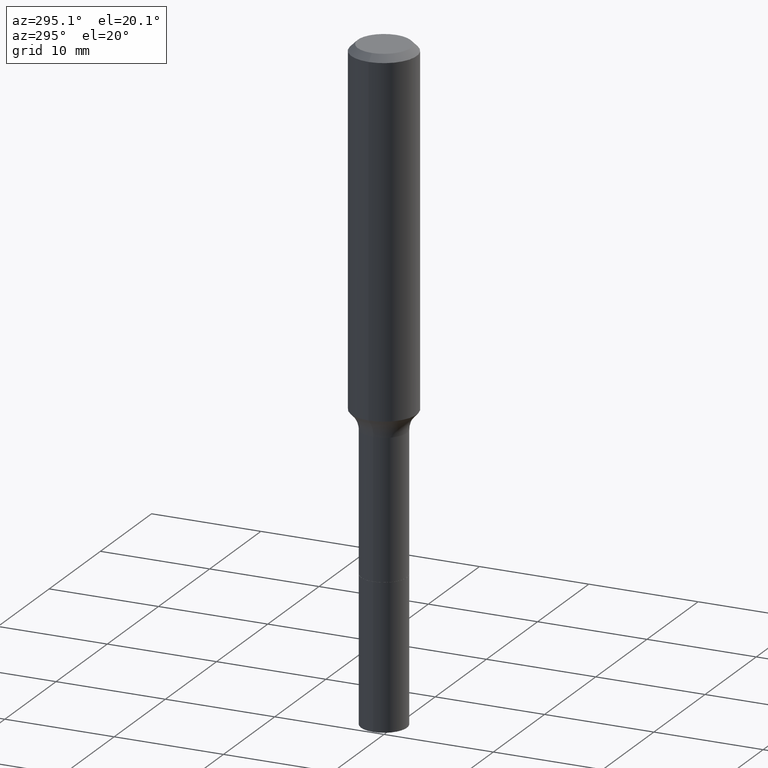
[diagram: clean part render]
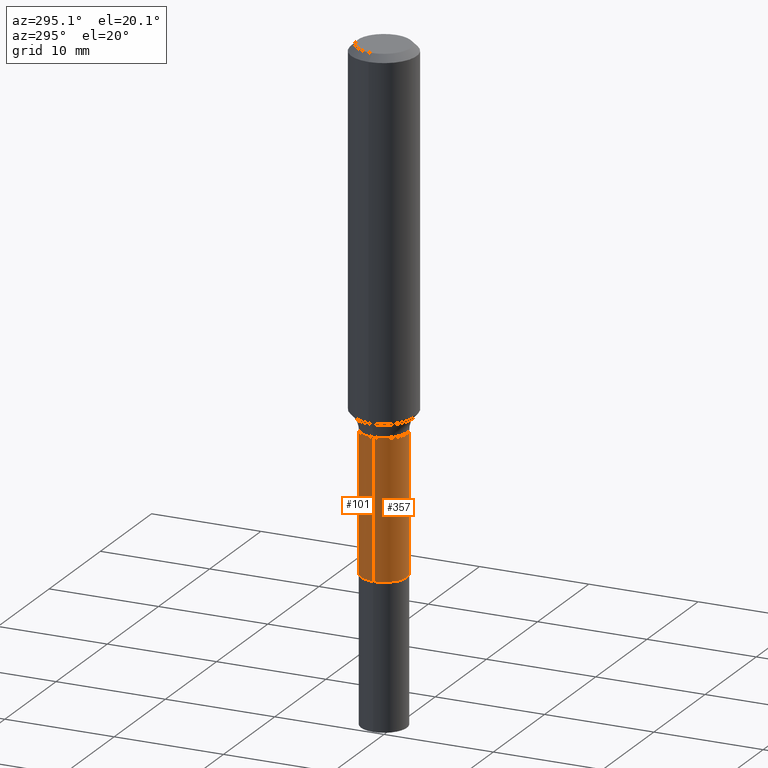
[diagram: same view with one multi-face feature highlighted, each face labeled with its STEP entity id]
A machine part, auxiliary view. The highlighted faces form ONE feature: a constant-radius fillet chain: 2 tangent blend faces with common blend radius 2.1006 mm. The faces share edges in the B-rep.
Their STEP definitions:
[1] entity #101 (Cylinder):
#1 = CARTESIAN_POINT ( 'NONE',  ( -0.08269999999999996798, 5.876188424736026262E-16, -4.067959319640804802E-30 ) ) ;
#69 = EDGE_CURVE ( 'NONE', #498, #363, #70, .T. ) ;
#70 = LINE ( 'NONE', #378, #125 ) ;
#74 = DIRECTION ( 'NONE',  ( -2.445468806185136877E-29, 3.491481338843145188E-15, 1.000000000000000000 ) ) ;
#77 = CARTESIAN_POINT ( 'NONE',  ( 3.272526356436949336E-29, -4.672300327639896745E-15, -1.338200000000000056 ) ) ;
#86 = CARTESIAN_POINT ( 'NONE',  ( 0.08269999999999999574, -7.000769232514388924E-15, -1.839700000000000113 ) ) ;
#88 = EDGE_CURVE ( 'NONE', #369, #407, #159, .T. ) ;
#98 = CARTESIAN_POINT ( 'NONE',  ( -0.08269999999999999574, -4.960170430881213066E-15, -1.839700000000000113 ) ) ;
#101 = ADVANCED_FACE ( 'NONE', ( #280 ), #477, .T. ) ;
#117 = DIRECTION ( 'NONE',  ( -2.445468806185136597E-29, 3.491481338843145583E-15, 1.000000000000000000 ) ) ;
#118 = AXIS2_PLACEMENT_3D ( 'NONE', #163, #346, #126 ) ;
#125 = VECTOR ( 'NONE', #183, 39.37007874015748143 ) ;
#126 = DIRECTION ( 'NONE',  ( 1.000000000000000000, -6.982962677686267499E-15, 4.876176775795935793E-29 ) ) ;
#159 = LINE ( 'NONE', #1, #350 ) ;
#163 = CARTESIAN_POINT ( 'NONE',  ( 0.000000000000000000, 0.000000000000000000, 0.000000000000000000 ) ) ;
#173 = ORIENTED_EDGE ( 'NONE', *, *, #463, .T. ) ;
#176 = ORIENTED_EDGE ( 'NONE', *, *, #69, .F. ) ;
#183 = DIRECTION ( 'NONE',  ( -2.445468806185136877E-29, 3.491481338843145188E-15, 1.000000000000000000 ) ) ;
#199 = DIRECTION ( 'NONE',  ( 1.000000000000000000, -6.982962677686261189E-15, 0.000000000000000000 ) ) ;
#219 = CIRCLE ( 'NONE', #409, 0.08269999999999999574 ) ;
#220 = EDGE_LOOP ( 'NONE', ( #173, #465, #416, #176 ) ) ;
#280 = FACE_OUTER_BOUND ( 'NONE', #220, .T. ) ;
#291 = AXIS2_PLACEMENT_3D ( 'NONE', #77, #478, #349 ) ;
#294 = CARTESIAN_POINT ( 'NONE',  ( 0.08269999999999992635, -5.249791341084550636E-15, -1.338200000000000056 ) ) ;
#298 = CARTESIAN_POINT ( 'NONE',  ( -0.08269999999999992635, -4.960170430881213854E-15, -1.338200000000000056 ) ) ;
#319 = CARTESIAN_POINT ( 'NONE',  ( 4.498928962738796038E-29, -6.423278219069735033E-15, -1.839700000000000113 ) ) ;
#346 = DIRECTION ( 'NONE',  ( -2.445468806185136597E-29, 3.491481338843145583E-15, 1.000000000000000000 ) ) ;
#349 = DIRECTION ( 'NONE',  ( 1.000000000000000000, -6.982962677686267499E-15, 0.000000000000000000 ) ) ;
#350 = VECTOR ( 'NONE', #74, 39.37007874015748143 ) ;
#363 = VERTEX_POINT ( 'NONE', #294 ) ;
#369 = VERTEX_POINT ( 'NONE', #98 ) ;
#378 = CARTESIAN_POINT ( 'NONE',  ( 0.08269999999999996798, -5.774910134446540881E-16, 4.032598193583237169E-30 ) ) ;
#407 = VERTEX_POINT ( 'NONE', #298 ) ;
#409 = AXIS2_PLACEMENT_3D ( 'NONE', #319, #117, #199 ) ;
#416 = ORIENTED_EDGE ( 'NONE', *, *, #509, .F. ) ;
#463 = EDGE_CURVE ( 'NONE', #498, #369, #219, .T. ) ;
#465 = ORIENTED_EDGE ( 'NONE', *, *, #88, .T. ) ;
#477 = CYLINDRICAL_SURFACE ( 'NONE', #118, 0.08269999999999996798 ) ;
#478 = DIRECTION ( 'NONE',  ( -2.445468806185136597E-29, 3.491481338843145583E-15, 1.000000000000000000 ) ) ;
#498 = VERTEX_POINT ( 'NONE', #86 ) ;
#509 = EDGE_CURVE ( 'NONE', #363, #407, #514, .T. ) ;
#514 = CIRCLE ( 'NONE', #291, 0.08269999999999992635 ) ;
[2] entity #357 (Cylinder):
#1 = CARTESIAN_POINT ( 'NONE',  ( -0.08269999999999996798, 5.876188424736026262E-16, -4.067959319640804802E-30 ) ) ;
#16 = AXIS2_PLACEMENT_3D ( 'NONE', #415, #287, #368 ) ;
#30 = CIRCLE ( 'NONE', #16, 0.08269999999999992635 ) ;
#69 = EDGE_CURVE ( 'NONE', #498, #363, #70, .T. ) ;
#70 = LINE ( 'NONE', #378, #125 ) ;
#74 = DIRECTION ( 'NONE',  ( -2.445468806185136877E-29, 3.491481338843145188E-15, 1.000000000000000000 ) ) ;
#86 = CARTESIAN_POINT ( 'NONE',  ( 0.08269999999999999574, -7.000769232514388924E-15, -1.839700000000000113 ) ) ;
#88 = EDGE_CURVE ( 'NONE', #369, #407, #159, .T. ) ;
#93 = ORIENTED_EDGE ( 'NONE', *, *, #186, .T. ) ;
#95 = CARTESIAN_POINT ( 'NONE',  ( 0.000000000000000000, 0.000000000000000000, 0.000000000000000000 ) ) ;
#98 = CARTESIAN_POINT ( 'NONE',  ( -0.08269999999999999574, -4.960170430881213066E-15, -1.839700000000000113 ) ) ;
#100 = ORIENTED_EDGE ( 'NONE', *, *, #88, .F. ) ;
#125 = VECTOR ( 'NONE', #183, 39.37007874015748143 ) ;
#139 = ORIENTED_EDGE ( 'NONE', *, *, #242, .F. ) ;
#159 = LINE ( 'NONE', #1, #350 ) ;
#172 = FACE_OUTER_BOUND ( 'NONE', #188, .T. ) ;
#183 = DIRECTION ( 'NONE',  ( -2.445468806185136877E-29, 3.491481338843145188E-15, 1.000000000000000000 ) ) ;
#186 = EDGE_CURVE ( 'NONE', #369, #498, #235, .T. ) ;
#188 = EDGE_LOOP ( 'NONE', ( #100, #93, #253, #139 ) ) ;
#202 = CARTESIAN_POINT ( 'NONE',  ( 4.498928962738796038E-29, -6.423278219069735033E-15, -1.839700000000000113 ) ) ;
#215 = DIRECTION ( 'NONE',  ( -2.445468806185136597E-29, 3.491481338843145583E-15, 1.000000000000000000 ) ) ;
#235 = CIRCLE ( 'NONE', #431, 0.08269999999999999574 ) ;
#240 = DIRECTION ( 'NONE',  ( 1.000000000000000000, -6.982962677686261189E-15, 0.000000000000000000 ) ) ;
#242 = EDGE_CURVE ( 'NONE', #407, #363, #30, .T. ) ;
#253 = ORIENTED_EDGE ( 'NONE', *, *, #69, .T. ) ;
#287 = DIRECTION ( 'NONE',  ( -2.445468806185136597E-29, 3.491481338843145583E-15, 1.000000000000000000 ) ) ;
#294 = CARTESIAN_POINT ( 'NONE',  ( 0.08269999999999992635, -5.249791341084550636E-15, -1.338200000000000056 ) ) ;
#298 = CARTESIAN_POINT ( 'NONE',  ( -0.08269999999999992635, -4.960170430881213854E-15, -1.338200000000000056 ) ) ;
#330 = DIRECTION ( 'NONE',  ( 1.000000000000000000, -6.982962677686267499E-15, 4.876176775795935793E-29 ) ) ;
#350 = VECTOR ( 'NONE', #74, 39.37007874015748143 ) ;
#357 = ADVANCED_FACE ( 'NONE', ( #172 ), #456, .T. ) ;
#361 = AXIS2_PLACEMENT_3D ( 'NONE', #95, #215, #330 ) ;
#363 = VERTEX_POINT ( 'NONE', #294 ) ;
#368 = DIRECTION ( 'NONE',  ( 1.000000000000000000, -6.982962677686267499E-15, 0.000000000000000000 ) ) ;
#369 = VERTEX_POINT ( 'NONE', #98 ) ;
#378 = CARTESIAN_POINT ( 'NONE',  ( 0.08269999999999996798, -5.774910134446540881E-16, 4.032598193583237169E-30 ) ) ;
#407 = VERTEX_POINT ( 'NONE', #298 ) ;
#415 = CARTESIAN_POINT ( 'NONE',  ( 3.272526356436949336E-29, -4.672300327639896745E-15, -1.338200000000000056 ) ) ;
#431 = AXIS2_PLACEMENT_3D ( 'NONE', #202, #513, #240 ) ;
#456 = CYLINDRICAL_SURFACE ( 'NONE', #361, 0.08269999999999996798 ) ;
#498 = VERTEX_POINT ( 'NONE', #86 ) ;
#513 = DIRECTION ( 'NONE',  ( -2.445468806185136597E-29, 3.491481338843145583E-15, 1.000000000000000000 ) ) ;